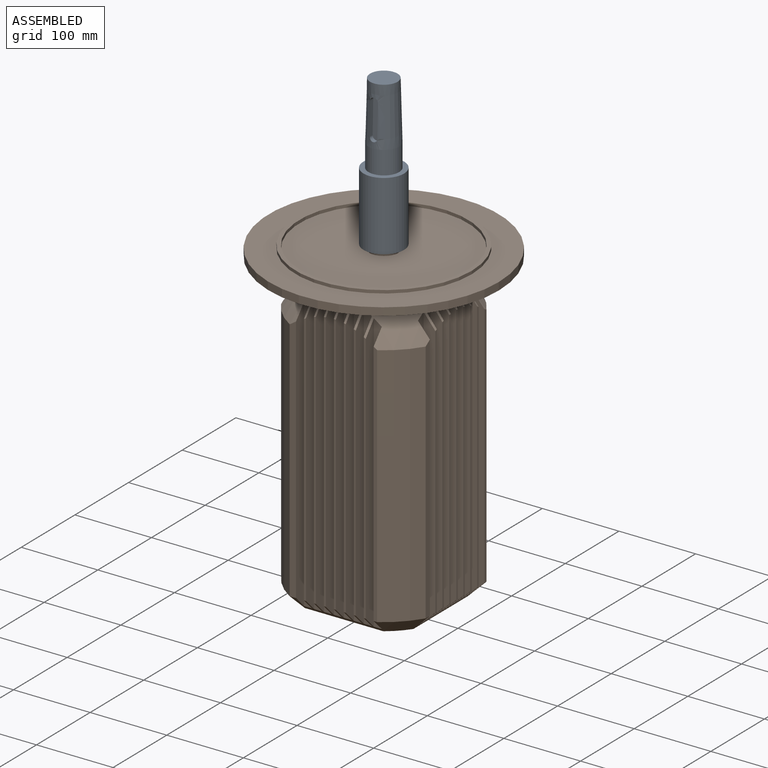
[diagram: assembled view]
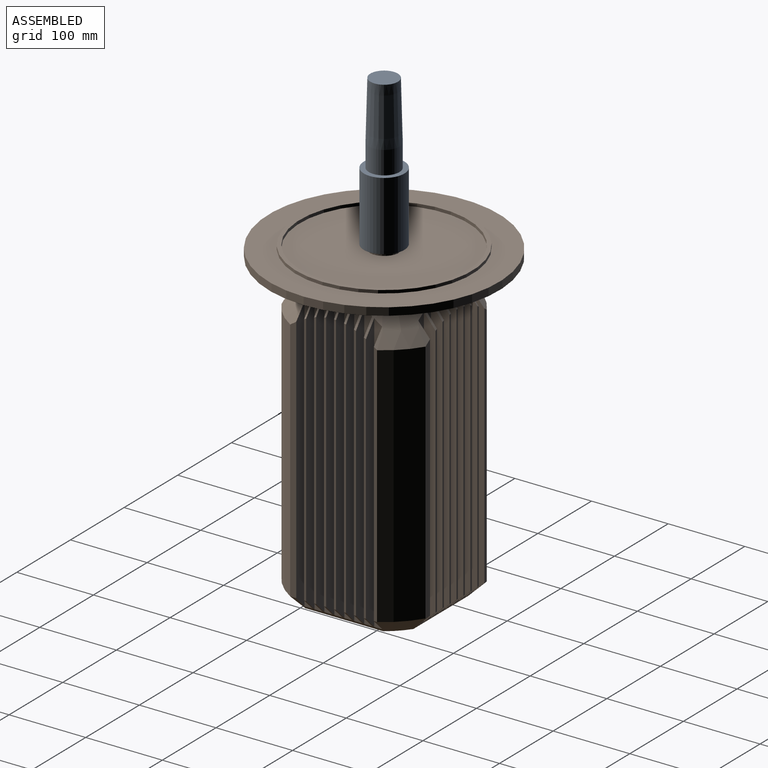
[diagram: assembled view, second angle]
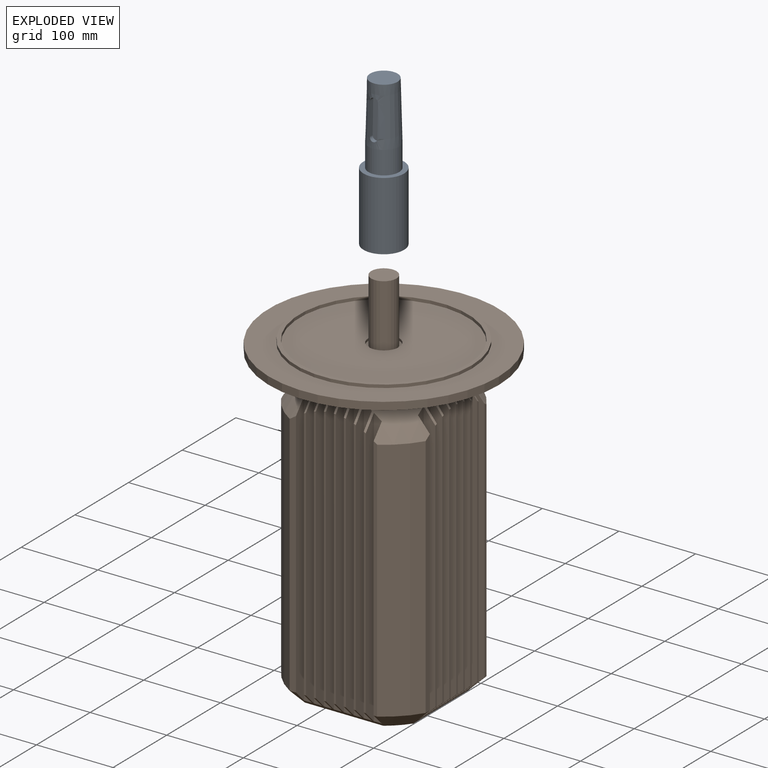
[diagram: exploded view]
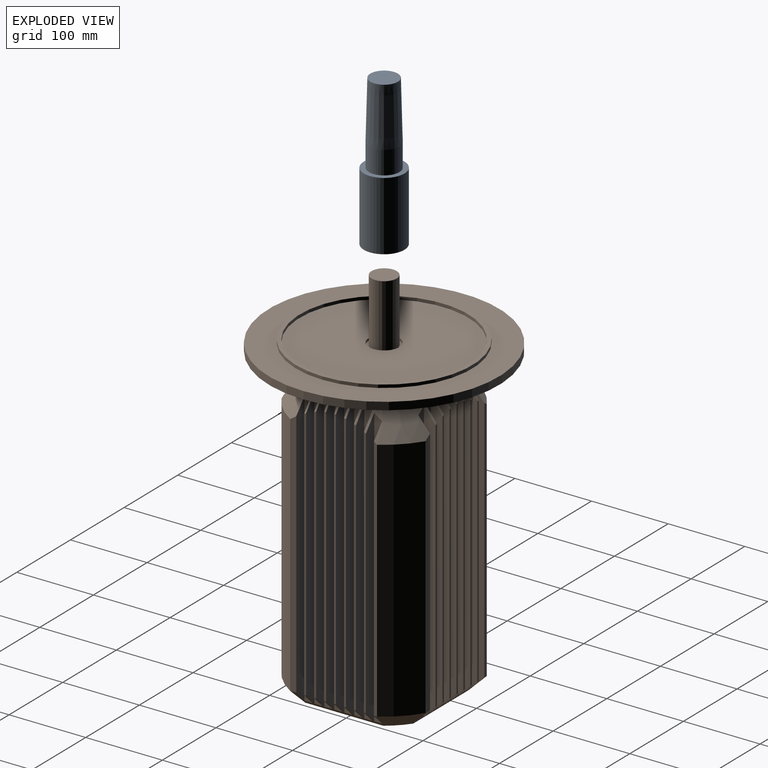
[diagram: exploded view, second angle]
ASSEMBLY  parts=2 mates=2
PART A: 13 faces, bbox 53x53x196 mm
  f0: cone r=20mm half-angle=1.5deg, axis (0,0,-1), area 8573.8mm2, adj f1,f2,f8,f9,f10,f11
  f1: cylinder r=20mm len=40mm, axis (0,0,-1), area 3769.9mm2, adj f0,f5
  f2: plane 36x36mm, normal (0,0,1), area 1017.9mm2, adj f0
  f3: cylinder r=26.5mm len=90mm, axis (0,0,1), area 14985.4mm2, adj f4,f5
  f4: plane 53x53mm, normal (0,0,-1), area 1350.9mm2, adj f3,f6
  f5: plane 53x53mm, normal (0,0,1), area 949.5mm2, adj f1,f3
  f6: cylinder r=16.5mm len=75mm, axis (0,0,-1), area 7775.4mm2, adj f4,f7
  f7: plane 33x33mm, normal (0,0,-1), area 855.3mm2, adj f6
  f8: plane 41.92x6.46mm, normal (1,0,0), area 222.9mm2, adj f0,f9,f11,f12
  f9: extruded ~10x6.13mm, area 88.9mm2, adj f0,f8,f10,f12
  f10: plane 41.92x6.46mm, normal (-1,0,0), area 222.9mm2, adj f0,f9,f11,f12
  f11: extruded ~10x6.13mm, area 89.2mm2, adj f0,f8,f10,f12
  f12: plane 51.76x10mm, normal (0,-1,0.03), area 496.4mm2, adj f8,f9,f10,f11
PART B: 208 faces, bbox 300.6x300.6x490.6 mm
  f0: cylinder r=150mm len=300mm, axis (0,0,-1), area 9424.8mm2, adj f1,f2
  f1: plane 300x300mm, normal (0,0,1), area 29138.3mm2, adj f0,f4
  f2: plane 300.01x300.01mm, normal (0,0,-1), area 39764.4mm2, adj f0,f207
  f3: cylinder r=110mm len=220mm, axis (0,0,-1), area 2764.6mm2, adj f5,f6
  f4: cylinder r=115mm len=230mm, axis (0,0,-1), area 2890.3mm2, adj f1,f5
  f5: plane 230x230mm, normal (0,0,1), area 3534.3mm2, adj f3,f4
  f6: plane 220x220mm, normal (0,0,1), area 36756.6mm2, adj f3,f7
  f7: cylinder r=20mm len=40mm, axis (0,0,1), area 377mm2, adj f6,f8
  f8: plane 40x40mm, normal (0,0,1), area 401.3mm2, adj f7,f9
  f9: cylinder r=16.5mm len=83mm, axis (0,0,-1), area 8604.8mm2, adj f8,f10
  f10: plane 33x33mm, normal (0,0,1), area 855.3mm2, adj f9
  f11: cylinder r=85.2mm len=170.4mm, axis (0,0,-1), area 6235.6mm2, adj f12,f13,f14,f15,f16,f17,f18,f19
  f12: cone r=85.2mm half-angle=36.5deg, axis (0,0,-1), area 60.9mm2, adj f11,f120,f124,f127
  f13: cone r=85.2mm half-angle=36.5deg, axis (0,0,-1), area 45.3mm2, adj f11,f116,f119,f122
  f14: cone r=85.2mm half-angle=36.5deg, axis (0,0,-1), area 39.5mm2, adj f11,f112,f115,f118
  f15: cone r=85.2mm half-angle=36.5deg, axis (0,0,-1), area 42.7mm2, adj f11,f108,f111,f114
  f16: cone r=85.2mm half-angle=36.5deg, axis (0,0,-1), area 55.3mm2, adj f11,f104,f107,f110
  f17: cone r=85.2mm half-angle=36.5deg, axis (0,0,-1), area 62mm2, adj f11,f68,f74,f75
  f18: cone r=85.2mm half-angle=36.5deg, axis (0,0,-1), area 46.5mm2, adj f11,f72,f78,f79
  f19: cone r=85.2mm half-angle=36.5deg, axis (0,0,-1), area 40.6mm2, adj f11,f76,f82,f83
  f20: cone r=85.2mm half-angle=36.5deg, axis (0,0,-1), area 43.8mm2, adj f11,f80,f86,f87
  f21: cone r=85.2mm half-angle=36.5deg, axis (0,0,-1), area 56.4mm2, adj f11,f84,f91,f92
  f22: cone r=85.2mm half-angle=36.5deg, axis (0,0,-1), area 2325.3mm2, adj f11,f63,f64,f65,f66,f67,f70,f71
  f23: cone r=85.2mm half-angle=36.5deg, axis (0,0,-1), area 60.9mm2, adj f11,f174,f180,f181
  f24: cone r=85.2mm half-angle=36.5deg, axis (0,0,-1), area 45.3mm2, adj f11,f178,f184,f185
  f25: cone r=85.2mm half-angle=36.5deg, axis (0,0,-1), area 39.5mm2, adj f11,f182,f188,f189
  f26: cone r=85.2mm half-angle=36.5deg, axis (0,0,-1), area 42.7mm2, adj f11,f186,f192,f193
  f27: cone r=85.2mm half-angle=36.5deg, axis (0,0,-1), area 55.3mm2, adj f11,f190,f197,f198
  f28: cone r=85.2mm half-angle=36.5deg, axis (0,0,-1), area 2326.9mm2, adj f11,f88,f89,f93,f94,f95,f96,f97
  f29: cone r=85.2mm half-angle=36.5deg, axis (0,0,-1), area 62mm2, adj f11,f155,f159,f162
  f30: cone r=85.2mm half-angle=36.5deg, axis (0,0,-1), area 46.5mm2, adj f11,f151,f154,f157
  f31: cone r=85.2mm half-angle=36.5deg, axis (0,0,-1), area 40.6mm2, adj f11,f147,f150,f153
  f32: cone r=85.2mm half-angle=36.5deg, axis (0,0,-1), area 43.8mm2, adj f11,f143,f146,f149
  f33: cone r=85.2mm half-angle=36.5deg, axis (0,0,-1), area 56.4mm2, adj f11,f139,f142,f145
  f34: cone r=85.2mm half-angle=36.5deg, axis (0,0,-1), area 2325.3mm2, adj f11,f158,f160,f163,f164,f165,f166,f167
  f35: cone r=85.2mm half-angle=36.5deg, axis (0,0,-1), area 2326.9mm2, adj f11,f123,f125,f128,f129,f130,f131,f132
  f36: plane 148.5x148mm, normal (0,0,-1), area 21043.1mm2, adj f37,f38,f43,f45,f50,f55,f57,f62
  f37: cone r=90mm half-angle=45deg, axis (0,0,1), area 1204.5mm2, adj f36,f50,f55,f206
  f38: cone r=90mm half-angle=45deg, axis (0,0,1), area 1204.5mm2, adj f36,f43,f62,f168
  f39: plane 369.81x10.35mm, normal (0,-1,0), area 3826.1mm2, adj f43,f119,f120,f121
  f40: plane 369.81x10.35mm, normal (0,-1,0), area 3826.1mm2, adj f43,f115,f116,f117
  f41: plane 369.81x10.35mm, normal (0,-1,0), area 3826.1mm2, adj f43,f111,f112,f113
  f42: plane 369.81x10.35mm, normal (0,-1,0), area 3826.1mm2, adj f43,f107,f108,f109
  f43: plane 114.72x20.45mm, normal (0,-0.71,-0.71), area 1288.6mm2, adj f36,f38,f39,f40,f41,f42,f45,f98
  f44: plane 14.6x14.6mm, normal (-0.71,0,-0.71), area 42.6mm2, adj f45,f65,f66
  f45: cone r=90mm half-angle=45deg, axis (0,0,1), area 1211.2mm2, adj f36,f43,f44,f50,f63,f65,f205
  f46: plane 370.06x10.35mm, normal (-1,0,0), area 3828.7mm2, adj f50,f72,f73,f74
  f47: plane 370.06x10.35mm, normal (-1,0,0), area 3828.7mm2, adj f50,f76,f77,f78
  f48: plane 370.06x10.35mm, normal (-1,0,0), area 3828.7mm2, adj f50,f80,f81,f82
  f49: plane 370.06x10.35mm, normal (-1,0,0), area 3828.7mm2, adj f50,f84,f85,f86
  f50: plane 109.41x20.45mm, normal (-0.71,0,-0.71), area 1194.5mm2, adj f36,f37,f45,f46,f47,f48,f49,f63
  f51: plane 369.81x10.35mm, normal (0,1,0), area 3826.1mm2, adj f55,f178,f179,f180
  f52: plane 369.81x10.35mm, normal (0,1,0), area 3826.1mm2, adj f55,f182,f183,f184
  f53: plane 369.81x10.35mm, normal (0,1,0), area 3826.1mm2, adj f55,f186,f187,f188
  f54: plane 369.81x10.35mm, normal (0,1,0), area 3826.1mm2, adj f55,f190,f191,f192
  f55: plane 114.72x20.45mm, normal (0,0.71,-0.71), area 1288.6mm2, adj f36,f37,f51,f52,f53,f54,f57,f169
  f56: plane 14.6x14.6mm, normal (0.71,0,-0.71), area 42.6mm2, adj f57,f165,f167
  f57: cone r=90mm half-angle=45deg, axis (0,0,1), area 1211.2mm2, adj f36,f55,f56,f62,f163,f165,f204
  f58: plane 370.06x10.35mm, normal (1,0,0), area 3828.7mm2, adj f62,f154,f155,f156
  f59: plane 370.06x10.35mm, normal (1,0,0), area 3828.7mm2, adj f62,f150,f151,f152
  f60: plane 370.06x10.35mm, normal (1,0,0), area 3828.7mm2, adj f62,f146,f147,f148
  f61: plane 370.06x10.35mm, normal (1,0,0), area 3828.7mm2, adj f62,f142,f143,f144
  f62: plane 109.41x20.45mm, normal (0.71,0,-0.71), area 1194.5mm2, adj f36,f38,f57,f58,f59,f60,f61,f133
  f63: plane 364.4x10.79mm, normal (-1,0,0), area 3729.2mm2, adj f22,f45,f50,f64,f65
  f64: plane 364.49x15.99mm, normal (0,-1,0), area 5360.5mm2, adj f22,f50,f63,f71
  f65: plane 357.17x16.05mm, normal (0,1,0), area 5256.6mm2, adj f22,f44,f45,f63,f66
  f66: plane 323.53x4.21mm, normal (-1,0,0), area 1334.1mm2, adj f22,f44,f65,f205
  f67: plane 370.3x10.59mm, normal (-1,0,0), area 3811.6mm2, adj f11,f22,f50,f68,f69,f70
  f68: plane 370.41x15.8mm, normal (0,-1,0), area 5463.7mm2, adj f11,f17,f50,f67,f69,f75
  f69: plane 3.18x1.23mm, normal (0,0,-1), area 2mm2, adj f11,f67,f68
  f70: plane 366.13x15.97mm, normal (0,1,0), area 5384.2mm2, adj f22,f50,f67,f71
  f71: plane 331.2x2.68mm, normal (-1,0,0), area 877.1mm2, adj f22,f50,f64,f70
  f72: plane 370.18x15.56mm, normal (0,-1,0), area 5519.6mm2, adj f11,f18,f46,f50,f73,f79
  f73: plane 10.35x4.84mm, normal (0,0,-1), area 37.4mm2, adj f11,f46,f72,f74
  f74: plane 370.34x15.73mm, normal (0,1,0), area 5479.1mm2, adj f11,f17,f46,f50,f73,f75
  f75: plane 337.01x2.69mm, normal (-1,0,0), area 893mm2, adj f17,f50,f68,f74
  f76: plane 370.08x15.47mm, normal (0,-1,0), area 5539mm2, adj f11,f19,f47,f50,f77,f83
  f77: plane 10.35x6.34mm, normal (0,0,-1), area 61.4mm2, adj f11,f47,f76,f78
  f78: plane 370.15x15.54mm, normal (0,1,0), area 5526mm2, adj f11,f18,f47,f50,f77,f79
  f79: plane 340.67x2.69mm, normal (-1,0,0), area 903.3mm2, adj f18,f50,f72,f78
  f80: plane 370.12x15.51mm, normal (0,-1,0), area 5532.8mm2, adj f11,f20,f48,f50,f81,f87
  f81: plane 10.35x6.4mm, normal (0,0,-1), area 64.4mm2, adj f11,f48,f80,f82
  f82: plane 370.07x15.46mm, normal (0,1,0), area 5539.7mm2, adj f11,f19,f48,f50,f81,f83
  f83: plane 341.98x2.69mm, normal (-1,0,0), area 907.5mm2, adj f19,f50,f76,f82
  f84: plane 370.27x15.65mm, normal (0,-1,0), area 5497.3mm2, adj f11,f21,f49,f50,f85,f92
  f85: plane 10.35x5.49mm, normal (0,0,-1), area 46.6mm2, adj f11,f49,f84,f86
  f86: plane 370.14x15.53mm, normal (0,1,0), area 5528.3mm2, adj f11,f20,f49,f50,f85,f87
  f87: plane 341.3x2.69mm, normal (-1,0,0), area 905.2mm2, adj f20,f50,f80,f86
  f88: plane 370.12x10.4mm, normal (-1,0,0), area 3824.2mm2, adj f11,f28,f50,f89,f90,f91
  f89: plane 368.31x15.94mm, normal (0,-1,0), area 5416mm2, adj f28,f50,f88,f96
  f90: plane 6.98x2.52mm, normal (0,0,-1), area 9.2mm2, adj f11,f88,f91
  f91: plane 370.32x15.71mm, normal (0,1,0), area 5485mm2, adj f11,f21,f50,f88,f90,f92
  f92: plane 338.31x2.69mm, normal (-1,0,0), area 896.7mm2, adj f21,f50,f84,f91
  f93: plane 366.77x10.82mm, normal (-1,0,0), area 3755.8mm2, adj f28,f50,f94,f95
  f94: plane 360.11x16.03mm, normal (0,-1,0), area 5296.8mm2, adj f28,f50,f93,f97
  f95: plane 366.8x15.96mm, normal (0,1,0), area 5394.1mm2, adj f28,f50,f93,f96
  f96: plane 333.11x2.68mm, normal (-1,0,0), area 882.3mm2, adj f28,f50,f89,f95
  f97: plane 326.13x8.17mm, normal (-1,0,0), area 2567.4mm2, adj f28,f50,f94,f206
  f98: plane 366.52x10.82mm, normal (0,-1,0), area 3753.2mm2, adj f22,f43,f99,f100
  f99: plane 359.84x15.76mm, normal (1,0,0), area 5210.6mm2, adj f22,f43,f98,f101
  f100: plane 366.53x15.69mm, normal (-1,0,0), area 5306.5mm2, adj f22,f43,f98,f106
  f101: plane 326.45x8.61mm, normal (0,-1,0), area 2703.6mm2, adj f22,f43,f99,f205
  f102: plane 369.87x10.4mm, normal (0,-1,0), area 3821.6mm2, adj f11,f22,f43,f103,f104,f105
  f103: plane 368.04x15.67mm, normal (1,0,0), area 5328mm2, adj f22,f43,f102,f106
  f104: plane 370.06x15.44mm, normal (-1,0,0), area 5396mm2, adj f11,f16,f43,f102,f105,f110
  f105: plane 6.98x2.52mm, normal (0,0,-1), area 9.2mm2, adj f11,f102,f104
  f106: plane 333.43x2.69mm, normal (0,-1,0), area 883.1mm2, adj f22,f43,f100,f103
  f107: plane 370.01x15.39mm, normal (1,0,0), area 5408mm2, adj f11,f16,f42,f43,f109,f110
  f108: plane 369.88x15.27mm, normal (-1,0,0), area 5438.4mm2, adj f11,f15,f42,f43,f109,f114
  f109: plane 10.35x5.49mm, normal (0,0,-1), area 46.6mm2, adj f11,f42,f107,f108
  f110: plane 338.64x2.69mm, normal (0,-1,0), area 897.5mm2, adj f16,f43,f104,f107
  f111: plane 369.87x15.25mm, normal (1,0,0), area 5442.7mm2, adj f11,f15,f41,f43,f113,f114
  f112: plane 369.81x15.2mm, normal (-1,0,0), area 5449.5mm2, adj f11,f14,f41,f43,f113,f118
  f113: plane 10.35x6.4mm, normal (0,0,-1), area 64.4mm2, adj f11,f41,f111,f112
  f114: plane 341.64x2.69mm, normal (0,-1,0), area 906.1mm2, adj f15,f43,f108,f111
  f115: plane 369.83x15.22mm, normal (1,0,0), area 5448.8mm2, adj f11,f14,f40,f43,f117,f118
  f116: plane 369.89x15.28mm, normal (-1,0,0), area 5436.1mm2, adj f11,f13,f40,f43,f117,f122
  f117: plane 10.35x6.34mm, normal (0,0,-1), area 61.4mm2, adj f11,f40,f115,f116
  f118: plane 342.32x2.69mm, normal (0,-1,0), area 908.4mm2, adj f14,f43,f112,f115
  f119: plane 369.92x15.31mm, normal (1,0,0), area 5429.9mm2, adj f11,f13,f39,f43,f121,f122
  f120: plane 370.08x15.47mm, normal (-1,0,0), area 5390.2mm2, adj f11,f12,f39,f43,f121,f127
  f121: plane 10.35x4.84mm, normal (0,0,-1), area 37.4mm2, adj f11,f39,f119,f120
  f122: plane 341x2.69mm, normal (0,-1,0), area 904.2mm2, adj f13,f43,f116,f119
  f123: plane 370.05x10.59mm, normal (0,-1,0), area 3809mm2, adj f11,f35,f43,f124,f125,f126
  f124: plane 370.15x15.54mm, normal (1,0,0), area 5375mm2, adj f11,f12,f43,f123,f126,f127
  f125: plane 365.86x15.7mm, normal (-1,0,0), area 5296.8mm2, adj f35,f43,f123,f131
  f126: plane 3.18x1.23mm, normal (0,0,-1), area 2mm2, adj f11,f123,f124
  f127: plane 337.34x2.69mm, normal (0,-1,0), area 893.9mm2, adj f12,f43,f120,f124
  f128: plane 364.15x10.79mm, normal (0,-1,0), area 3726.6mm2, adj f35,f43,f129,f130
  f129: plane 364.23x15.72mm, normal (1,0,0), area 5273.4mm2, adj f35,f43,f128,f131
  f130: plane 357.08x15.78mm, normal (-1,0,0), area 5171.1mm2, adj f35,f43,f128,f132
  f131: plane 331.52x2.68mm, normal (0,-1,0), area 877.9mm2, adj f35,f43,f125,f129
  f132: plane 323.84x4.64mm, normal (0,-1,0), area 1469.1mm2, adj f35,f43,f130,f168
  f133: plane 366.77x10.82mm, normal (1,0,0), area 3755.8mm2, adj f35,f62,f134,f135
  f134: plane 360.11x16.03mm, normal (0,1,0), area 5296.8mm2, adj f35,f62,f133,f136
  f135: plane 366.8x15.96mm, normal (0,-1,0), area 5394.1mm2, adj f35,f62,f133,f141
  f136: plane 326.13x8.17mm, normal (1,0,0), area 2567.4mm2, adj f35,f62,f134,f168
  f137: plane 370.12x10.4mm, normal (1,0,0), area 3824.2mm2, adj f11,f35,f62,f138,f139,f140
  f138: plane 368.31x15.94mm, normal (0,1,0), area 5416mm2, adj f35,f62,f137,f141
  f139: plane 370.32x15.71mm, normal (0,-1,0), area 5485mm2, adj f11,f33,f62,f137,f140,f145
  f140: plane 6.98x2.52mm, normal (0,0,-1), area 9.2mm2, adj f11,f137,f139
  f141: plane 333.11x2.69mm, normal (1,0,0), area 882.3mm2, adj f35,f62,f135,f138
  f142: plane 370.27x15.65mm, normal (0,1,0), area 5497.3mm2, adj f11,f33,f61,f62,f144,f145
  f143: plane 370.14x15.53mm, normal (0,-1,0), area 5528.3mm2, adj f11,f32,f61,f62,f144,f149
  f144: plane 10.35x5.49mm, normal (0,0,-1), area 46.6mm2, adj f11,f61,f142,f143
  f145: plane 338.31x2.69mm, normal (1,0,0), area 896.7mm2, adj f33,f62,f139,f142
  f146: plane 370.12x15.51mm, normal (0,1,0), area 5532.8mm2, adj f11,f32,f60,f62,f148,f149
  f147: plane 370.07x15.46mm, normal (0,-1,0), area 5539.7mm2, adj f11,f31,f60,f62,f148,f153
  f148: plane 10.35x6.4mm, normal (0,0,-1), area 64.4mm2, adj f11,f60,f146,f147
  f149: plane 341.3x2.69mm, normal (1,0,0), area 905.2mm2, adj f32,f62,f143,f146
  f150: plane 370.08x15.47mm, normal (0,1,0), area 5539mm2, adj f11,f31,f59,f62,f152,f153
  f151: plane 370.15x15.54mm, normal (0,-1,0), area 5526mm2, adj f11,f30,f59,f62,f152,f157
  f152: plane 10.35x6.34mm, normal (0,0,-1), area 61.4mm2, adj f11,f59,f150,f151
  f153: plane 341.98x2.69mm, normal (1,0,0), area 907.5mm2, adj f31,f62,f147,f150
  f154: plane 370.18x15.56mm, normal (0,1,0), area 5519.6mm2, adj f11,f30,f58,f62,f156,f157
  f155: plane 370.34x15.73mm, normal (0,-1,0), area 5479.1mm2, adj f11,f29,f58,f62,f156,f162
  f156: plane 10.35x4.84mm, normal (0,0,-1), area 37.4mm2, adj f11,f58,f154,f155
  f157: plane 340.67x2.69mm, normal (1,0,0), area 903.3mm2, adj f30,f62,f151,f154
  f158: plane 370.3x10.59mm, normal (1,0,0), area 3811.6mm2, adj f11,f34,f62,f159,f160,f161
  f159: plane 370.41x15.8mm, normal (0,1,0), area 5463.7mm2, adj f11,f29,f62,f158,f161,f162
  f160: plane 366.13x15.97mm, normal (0,-1,0), area 5384.2mm2, adj f34,f62,f158,f166
  f161: plane 3.18x1.23mm, normal (0,0,-1), area 2mm2, adj f11,f158,f159
  f162: plane 337.01x2.69mm, normal (1,0,0), area 893mm2, adj f29,f62,f155,f159
  f163: plane 364.4x10.79mm, normal (1,0,0), area 3729.2mm2, adj f34,f57,f62,f164,f165
  f164: plane 364.49x15.99mm, normal (0,1,0), area 5360.5mm2, adj f34,f62,f163,f166
  f165: plane 357.17x16.05mm, normal (0,-1,0), area 5256.6mm2, adj f34,f56,f57,f163,f167
  f166: plane 331.2x2.68mm, normal (1,0,0), area 877.1mm2, adj f34,f62,f160,f164
  f167: plane 323.53x4.2mm, normal (1,0,0), area 1334.1mm2, adj f34,f56,f165,f204
  f168: cylinder r=110mm len=320.66mm, axis (0,0,1), area 17036.2mm2, adj f35,f38,f132,f136
  f169: plane 364.15x10.79mm, normal (0,1,0), area 3726.6mm2, adj f28,f55,f170,f171
  f170: plane 364.23x15.72mm, normal (-1,0,0), area 5273.4mm2, adj f28,f55,f169,f177
  f171: plane 357.08x15.78mm, normal (1,0,0), area 5171.1mm2, adj f28,f55,f169,f172
  f172: plane 323.84x4.64mm, normal (0,1,0), area 1469.1mm2, adj f28,f55,f171,f206
  f173: plane 370.05x10.59mm, normal (0,1,0), area 3809mm2, adj f11,f28,f55,f174,f175,f176
  f174: plane 370.15x15.54mm, normal (-1,0,0), area 5375mm2, adj f11,f23,f55,f173,f175,f181
  f175: plane 3.18x1.23mm, normal (0,0,-1), area 2mm2, adj f11,f173,f174
  f176: plane 365.86x15.7mm, normal (1,0,0), area 5296.8mm2, adj f28,f55,f173,f177
  f177: plane 331.52x2.68mm, normal (0,1,0), area 877.9mm2, adj f28,f55,f170,f176
  f178: plane 369.92x15.31mm, normal (-1,0,0), area 5429.9mm2, adj f11,f24,f51,f55,f179,f185
  f179: plane 10.35x4.84mm, normal (0,0,-1), area 37.4mm2, adj f11,f51,f178,f180
  f180: plane 370.08x15.47mm, normal (1,0,0), area 5390.2mm2, adj f11,f23,f51,f55,f179,f181
  f181: plane 337.34x2.68mm, normal (0,1,0), area 893.9mm2, adj f23,f55,f174,f180
  f182: plane 369.83x15.22mm, normal (-1,0,0), area 5448.8mm2, adj f11,f25,f52,f55,f183,f189
  f183: plane 10.35x6.34mm, normal (0,0,-1), area 61.4mm2, adj f11,f52,f182,f184
  f184: plane 369.89x15.28mm, normal (1,0,0), area 5436.1mm2, adj f11,f24,f52,f55,f183,f185
  f185: plane 341x2.69mm, normal (0,1,0), area 904.2mm2, adj f24,f55,f178,f184
  f186: plane 369.87x15.25mm, normal (-1,0,0), area 5442.7mm2, adj f11,f26,f53,f55,f187,f193
  f187: plane 10.35x6.4mm, normal (0,0,-1), area 64.4mm2, adj f11,f53,f186,f188
  f188: plane 369.81x15.2mm, normal (1,0,0), area 5449.5mm2, adj f11,f25,f53,f55,f187,f189
  f189: plane 342.32x2.69mm, normal (0,1,0), area 908.4mm2, adj f25,f55,f182,f188
  f190: plane 370.01x15.39mm, normal (-1,0,0), area 5408mm2, adj f11,f27,f54,f55,f191,f198
  f191: plane 10.35x5.49mm, normal (0,0,-1), area 46.6mm2, adj f11,f54,f190,f192
  f192: plane 369.88x15.27mm, normal (1,0,0), area 5438.4mm2, adj f11,f26,f54,f55,f191,f193
  f193: plane 341.64x2.69mm, normal (0,1,0), area 906.1mm2, adj f26,f55,f186,f192
  f194: plane 369.87x10.4mm, normal (0,1,0), area 3821.6mm2, adj f11,f34,f55,f195,f196,f197
  f195: plane 368.04x15.67mm, normal (-1,0,0), area 5328mm2, adj f34,f55,f194,f202
  f196: plane 6.98x2.52mm, normal (0,0,-1), area 9.2mm2, adj f11,f194,f197
  f197: plane 370.06x15.44mm, normal (1,0,0), area 5396mm2, adj f11,f27,f55,f194,f196,f198
  f198: plane 338.65x2.69mm, normal (0,1,0), area 897.5mm2, adj f27,f55,f190,f197
  f199: plane 366.52x10.82mm, normal (0,1,0), area 3753.2mm2, adj f34,f55,f200,f201
  f200: plane 359.84x15.76mm, normal (-1,0,0), area 5210.7mm2, adj f34,f55,f199,f203
  f201: plane 366.53x15.69mm, normal (1,0,0), area 5306.5mm2, adj f34,f55,f199,f202
  f202: plane 333.43x2.68mm, normal (0,1,0), area 883.1mm2, adj f34,f55,f195,f201
  f203: plane 326.45x8.61mm, normal (0,1,0), area 2703.6mm2, adj f34,f55,f200,f204
  f204: cylinder r=110mm len=320.66mm, axis (0,0,1), area 17036.2mm2, adj f34,f57,f167,f203
  f205: cylinder r=110mm len=320.66mm, axis (0,0,1), area 17036.2mm2, adj f22,f45,f66,f101
  f206: cylinder r=110mm len=320.66mm, axis (0,0,1), area 17036.2mm2, adj f28,f37,f97,f172
  f207: bspline ~199.68x199.68mm, area 12076mm2, adj f2,f11
PLACE A t=(-261.32,-493.44,-753.01)mm
PLACE B t=(-261.32,-493.44,-408.01)mm
MATE cylindrical A.f3 <-> B.f9  axis (0,0,-1) through (-261.32,-493.44,-393.01)mm
MATE planar A.f6 <-> B.f9  axis (0,0,-1) through (-261.32,-493.44,-318.01)mm
